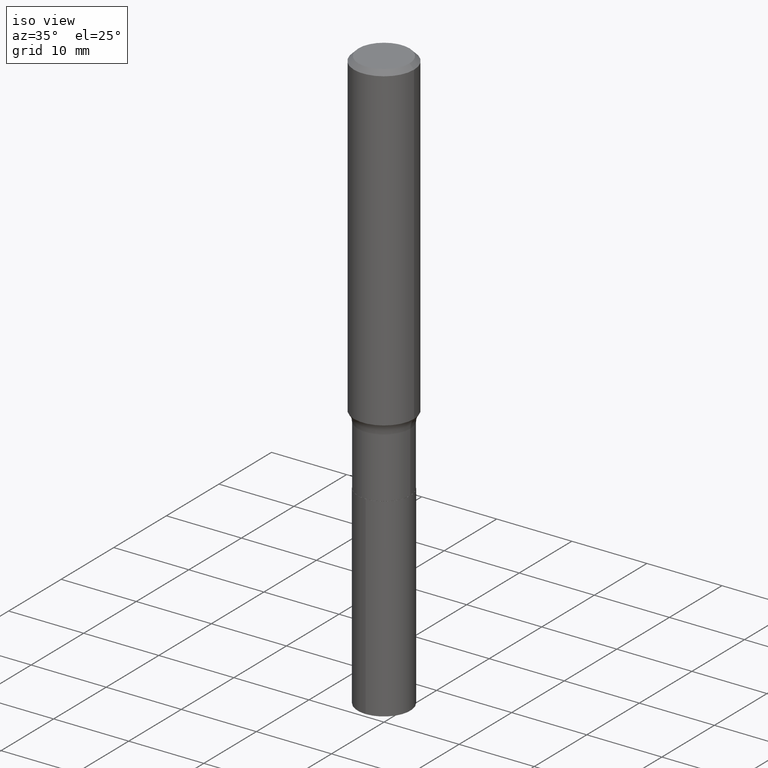
[diagram: clean part render]
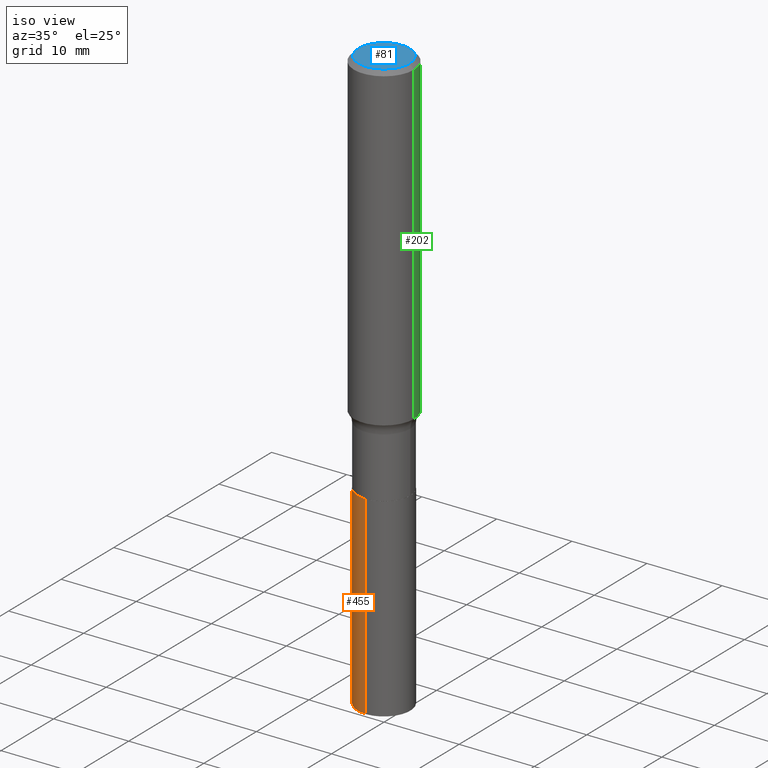
[diagram: same view with three faces highlighted in distinct colors, each labeled with its STEP entity id]
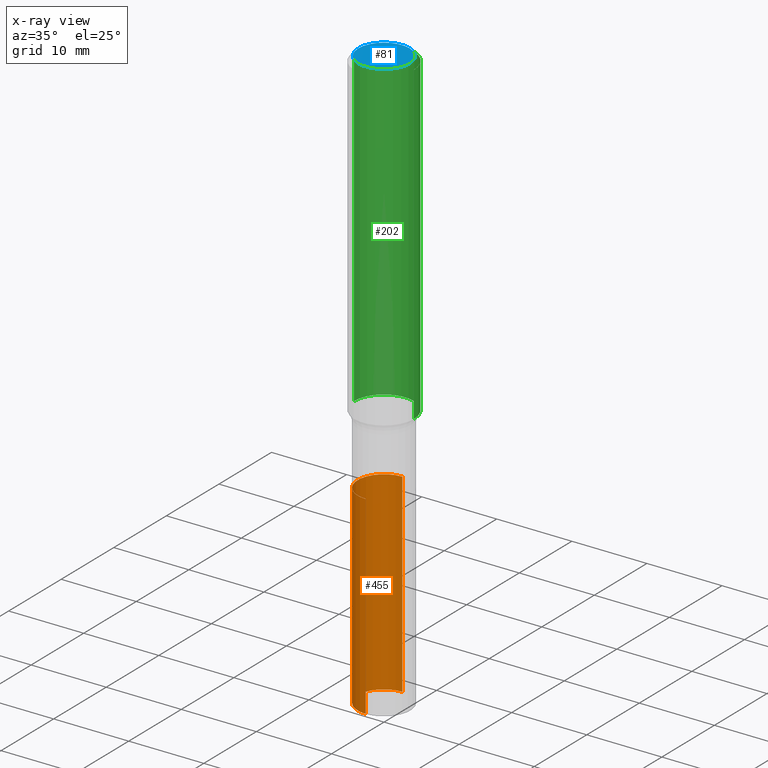
[diagram: x-ray of the same camera — body ghosted, the three highlighted faces saturated]
A machine part, iso view with three faces highlighted in distinct colors.
The next image is the same camera in x-ray (body ghosted, the three faces saturated) — at least one of them is partly hidden behind the body in this view.
Their STEP definitions:

[orange] entity #455 — the highlighted cylindrical surface (edge-blend (fillet) strip) has radius 3.5001 mm, axis along (-0, 0, 1).
#5 = DIRECTION ( 'NONE',  ( -2.445770876945909598E-29, 3.491048756320918423E-15, 1.000000000000000000 ) ) ;
#16 = AXIS2_PLACEMENT_3D ( 'NONE', #88, #5, #132 ) ;
#85 = VECTOR ( 'NONE', #143, 39.37007874015748143 ) ;
#88 = CARTESIAN_POINT ( 'NONE',  ( 7.499953905772830798E-29, -1.070706573415739068E-14, -3.066751826892477162 ) ) ;
#95 = CARTESIAN_POINT ( 'NONE',  ( 9.791278898774930393E-16, 0.1377999999999892644, -3.066751826892477606 ) ) ;
#102 = ORIENTED_EDGE ( 'NONE', *, *, #339, .T. ) ;
#116 = VERTEX_POINT ( 'NONE', #421 ) ;
#119 = CYLINDRICAL_SURFACE ( 'NONE', #321, 0.1378000000000000058 ) ;
#121 = CIRCLE ( 'NONE', #323, 0.1378000000000000058 ) ;
#122 = ORIENTED_EDGE ( 'NONE', *, *, #309, .T. ) ;
#132 = DIRECTION ( 'NONE',  ( -6.982962677686265922E-15, -1.000000000000000000, 3.964946289788480896E-15 ) ) ;
#143 = DIRECTION ( 'NONE',  ( -2.445770876945909598E-29, 3.491048756320918423E-15, 1.000000000000000000 ) ) ;
#144 = CIRCLE ( 'NONE', #16, 0.1378000000000000058 ) ;
#151 = VERTEX_POINT ( 'NONE', #95 ) ;
#210 = DIRECTION ( 'NONE',  ( -6.982962677686265922E-15, -1.000000000000000000, 3.964946289788480896E-15 ) ) ;
#223 = ORIENTED_EDGE ( 'NONE', *, *, #289, .F. ) ;
#225 = CARTESIAN_POINT ( 'NONE',  ( -9.622522569851173843E-16, -0.1378000000000071668, -2.047199999999999243 ) ) ;
#235 = DIRECTION ( 'NONE',  ( -6.982962677686265922E-15, -1.000000000000000000, 3.964946289788480896E-15 ) ) ;
#247 = VERTEX_POINT ( 'NONE', #479 ) ;
#259 = LINE ( 'NONE', #225, #358 ) ;
#267 = CARTESIAN_POINT ( 'NONE',  ( 5.006363740022211680E-29, -7.147760596879688202E-15, -2.047200000000000131 ) ) ;
#289 = EDGE_CURVE ( 'NONE', #151, #300, #311, .T. ) ;
#300 = VERTEX_POINT ( 'NONE', #316 ) ;
#308 = DIRECTION ( 'NONE',  ( -2.445770876945909598E-29, 3.491048756320918423E-15, 1.000000000000000000 ) ) ;
#309 = EDGE_CURVE ( 'NONE', #116, #247, #259, .T. ) ;
#311 = LINE ( 'NONE', #472, #85 ) ;
#316 = CARTESIAN_POINT ( 'NONE',  ( 9.791278898774932365E-16, 0.1377999999999928726, -2.047200000000000575 ) ) ;
#321 = AXIS2_PLACEMENT_3D ( 'NONE', #417, #420, #235 ) ;
#323 = AXIS2_PLACEMENT_3D ( 'NONE', #267, #308, #210 ) ;
#339 = EDGE_CURVE ( 'NONE', #151, #116, #144, .T. ) ;
#358 = VECTOR ( 'NONE', #489, 39.37007874015748143 ) ;
#373 = ORIENTED_EDGE ( 'NONE', *, *, #391, .F. ) ;
#382 = EDGE_LOOP ( 'NONE', ( #223, #102, #122, #373 ) ) ;
#391 = EDGE_CURVE ( 'NONE', #300, #247, #121, .T. ) ;
#417 = CARTESIAN_POINT ( 'NONE',  ( 5.006363740022211680E-29, -7.147760596879688202E-15, -2.047200000000000131 ) ) ;
#420 = DIRECTION ( 'NONE',  ( -2.445770876945909598E-29, 3.491048756320918423E-15, 1.000000000000000000 ) ) ;
#421 = CARTESIAN_POINT ( 'NONE',  ( -9.622522569850923380E-16, -0.1378000000000107195, -3.066751826892476718 ) ) ;
#453 = FACE_OUTER_BOUND ( 'NONE', #382, .T. ) ;
#455 = ADVANCED_FACE ( 'NONE', ( #453 ), #119, .T. ) ;
#472 = CARTESIAN_POINT ( 'NONE',  ( 9.791278898774681901E-16, 0.1377999999999928726, -2.047200000000000575 ) ) ;
#479 = CARTESIAN_POINT ( 'NONE',  ( -9.622522569851173843E-16, -0.1378000000000071668, -2.047199999999999243 ) ) ;
#489 = DIRECTION ( 'NONE',  ( -2.445770876945909598E-29, 3.491048756320918423E-15, 1.000000000000000000 ) ) ;

[blue] entity #81 — the highlighted planar face has unit normal (0, -0, -1).
#8 = CARTESIAN_POINT ( 'NONE',  ( 0.1338749999999999940, -1.040731925365424925E-15, 4.101342130351390035E-18 ) ) ;
#19 = CARTESIAN_POINT ( 'NONE',  ( -0.1338749999999999940, 9.760872517903331886E-16, 4.101342130337800673E-18 ) ) ;
#35 = DIRECTION ( 'NONE',  ( -1.000000000000000000, 6.982962677686265922E-15, -4.876176775795935793E-29 ) ) ;
#46 = CIRCLE ( 'NONE', #475, 0.1338749999999999940 ) ;
#81 = ADVANCED_FACE ( 'NONE', ( #172 ), #454, .F. ) ;
#129 = ORIENTED_EDGE ( 'NONE', *, *, #234, .T. ) ;
#172 = FACE_OUTER_BOUND ( 'NONE', #315, .T. ) ;
#176 = CIRCLE ( 'NONE', #255, 0.1338749999999999940 ) ;
#182 = AXIS2_PLACEMENT_3D ( 'NONE', #418, #305, #35 ) ;
#204 = VERTEX_POINT ( 'NONE', #19 ) ;
#234 = EDGE_CURVE ( 'NONE', #204, #368, #176, .T. ) ;
#255 = AXIS2_PLACEMENT_3D ( 'NONE', #473, #435, #397 ) ;
#256 = DIRECTION ( 'NONE',  ( 1.000000000000000000, -6.982962677686266711E-15, 4.876170806578254279E-29 ) ) ;
#285 = DIRECTION ( 'NONE',  ( -2.445468806185136597E-29, 3.491481338843145583E-15, 1.000000000000000000 ) ) ;
#301 = EDGE_CURVE ( 'NONE', #368, #204, #46, .T. ) ;
#305 = DIRECTION ( 'NONE',  ( 2.438088387897960049E-29, -3.491481338843145188E-15, -1.000000000000000000 ) ) ;
#312 = ORIENTED_EDGE ( 'NONE', *, *, #301, .T. ) ;
#315 = EDGE_LOOP ( 'NONE', ( #129, #312 ) ) ;
#368 = VERTEX_POINT ( 'NONE', #8 ) ;
#397 = DIRECTION ( 'NONE',  ( 1.000000000000000000, -6.982962677686266711E-15, 4.876170806578254279E-29 ) ) ;
#418 = CARTESIAN_POINT ( 'NONE',  ( -5.014852121625163022E-47, 7.159879756154476955E-33, 2.050671065172241055E-18 ) ) ;
#435 = DIRECTION ( 'NONE',  ( -2.445468806185136597E-29, 3.491481338843145583E-15, 1.000000000000000000 ) ) ;
#454 = PLANE ( 'NONE',  #182 ) ;
#473 = CARTESIAN_POINT ( 'NONE',  ( -1.002970424325032604E-46, 1.431975951230895391E-32, 4.101342130344482109E-18 ) ) ;
#475 = AXIS2_PLACEMENT_3D ( 'NONE', #477, #285, #256 ) ;
#477 = CARTESIAN_POINT ( 'NONE',  ( -1.002970424325032604E-46, 1.431975951230895391E-32, 4.101342130344482109E-18 ) ) ;

[green] entity #202 — the highlighted cylindrical surface (partial cylindrical patch) has radius 4.0005 mm, axis along (-0, 0, 1).
#10 = ORIENTED_EDGE ( 'NONE', *, *, #68, .F. ) ;
#13 = CARTESIAN_POINT ( 'NONE',  ( 5.777420054612421980E-31, -8.248624663016985234E-17, -0.02362500000000015282 ) ) ;
#21 = VECTOR ( 'NONE', #394, 39.37007874015748143 ) ;
#25 = VERTEX_POINT ( 'NONE', #43 ) ;
#28 = ORIENTED_EDGE ( 'NONE', *, *, #412, .F. ) ;
#29 = EDGE_CURVE ( 'NONE', #25, #274, #228, .T. ) ;
#43 = CARTESIAN_POINT ( 'NONE',  ( -0.1575000000000002232, -4.741283607490324763E-15, -1.678481952950733325 ) ) ;
#44 = CIRCLE ( 'NONE', #388, 0.1575000000000000011 ) ;
#45 = ORIENTED_EDGE ( 'NONE', *, *, #103, .T. ) ;
#51 = AXIS2_PLACEMENT_3D ( 'NONE', #233, #75, #384 ) ;
#68 = EDGE_CURVE ( 'NONE', #175, #274, #44, .T. ) ;
#75 = DIRECTION ( 'NONE',  ( -2.445468806185136597E-29, 3.491481338843145583E-15, 1.000000000000000000 ) ) ;
#103 = EDGE_CURVE ( 'NONE', #317, #25, #217, .T. ) ;
#112 = CARTESIAN_POINT ( 'NONE',  ( 0.1575000000000002232, -6.960205038048073791E-15, -1.678481952950733325 ) ) ;
#156 = CYLINDRICAL_SURFACE ( 'NONE', #313, 0.1575000000000000844 ) ;
#162 = DIRECTION ( 'NONE',  ( -2.445468806185136877E-29, 3.491481338843145188E-15, 1.000000000000000000 ) ) ;
#175 = VERTEX_POINT ( 'NONE', #199 ) ;
#180 = CARTESIAN_POINT ( 'NONE',  ( -0.1575000000000000011, -1.852332522649168278E-15, -0.02362500000000015282 ) ) ;
#193 = CARTESIAN_POINT ( 'NONE',  ( -0.1575000000000000844, 1.119104808822158392E-15, -7.747322767151481189E-30 ) ) ;
#196 = LINE ( 'NONE', #231, #21 ) ;
#199 = CARTESIAN_POINT ( 'NONE',  ( 0.1575000000000000011, -1.182302868365756679E-15, -0.02362500000000015282 ) ) ;
#202 = ADVANCED_FACE ( 'NONE', ( #272 ), #156, .T. ) ;
#217 = CIRCLE ( 'NONE', #51, 0.1575000000000002232 ) ;
#228 = LINE ( 'NONE', #193, #283 ) ;
#231 = CARTESIAN_POINT ( 'NONE',  ( 0.1575000000000000844, -1.099816621735587677E-15, 7.679978421878603638E-30 ) ) ;
#233 = CARTESIAN_POINT ( 'NONE',  ( 4.104675257685727015E-29, -5.860388416312484733E-15, -1.678481952950733325 ) ) ;
#272 = FACE_OUTER_BOUND ( 'NONE', #414, .T. ) ;
#274 = VERTEX_POINT ( 'NONE', #180 ) ;
#283 = VECTOR ( 'NONE', #162, 39.37007874015748143 ) ;
#297 = DIRECTION ( 'NONE',  ( -2.445468806185136597E-29, 3.491481338843145583E-15, 1.000000000000000000 ) ) ;
#313 = AXIS2_PLACEMENT_3D ( 'NONE', #387, #450, #401 ) ;
#317 = VERTEX_POINT ( 'NONE', #112 ) ;
#374 = DIRECTION ( 'NONE',  ( 1.000000000000000000, -6.982962677686265922E-15, 0.000000000000000000 ) ) ;
#384 = DIRECTION ( 'NONE',  ( 1.000000000000000000, -6.982962677686271444E-15, 0.000000000000000000 ) ) ;
#387 = CARTESIAN_POINT ( 'NONE',  ( 0.000000000000000000, 0.000000000000000000, 0.000000000000000000 ) ) ;
#388 = AXIS2_PLACEMENT_3D ( 'NONE', #13, #297, #374 ) ;
#394 = DIRECTION ( 'NONE',  ( -2.445468806185136877E-29, 3.491481338843145188E-15, 1.000000000000000000 ) ) ;
#401 = DIRECTION ( 'NONE',  ( 1.000000000000000000, -6.982962677686267499E-15, 4.876176775795936353E-29 ) ) ;
#412 = EDGE_CURVE ( 'NONE', #317, #175, #196, .T. ) ;
#414 = EDGE_LOOP ( 'NONE', ( #45, #462, #10, #28 ) ) ;
#450 = DIRECTION ( 'NONE',  ( -2.445468806185136597E-29, 3.491481338843145583E-15, 1.000000000000000000 ) ) ;
#462 = ORIENTED_EDGE ( 'NONE', *, *, #29, .T. ) ;